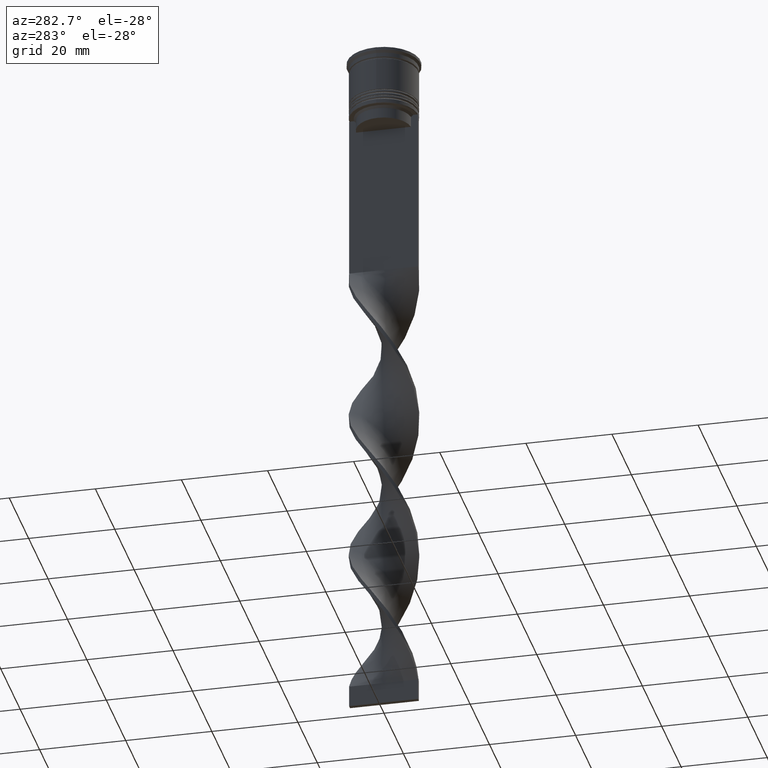
[diagram: clean part render]
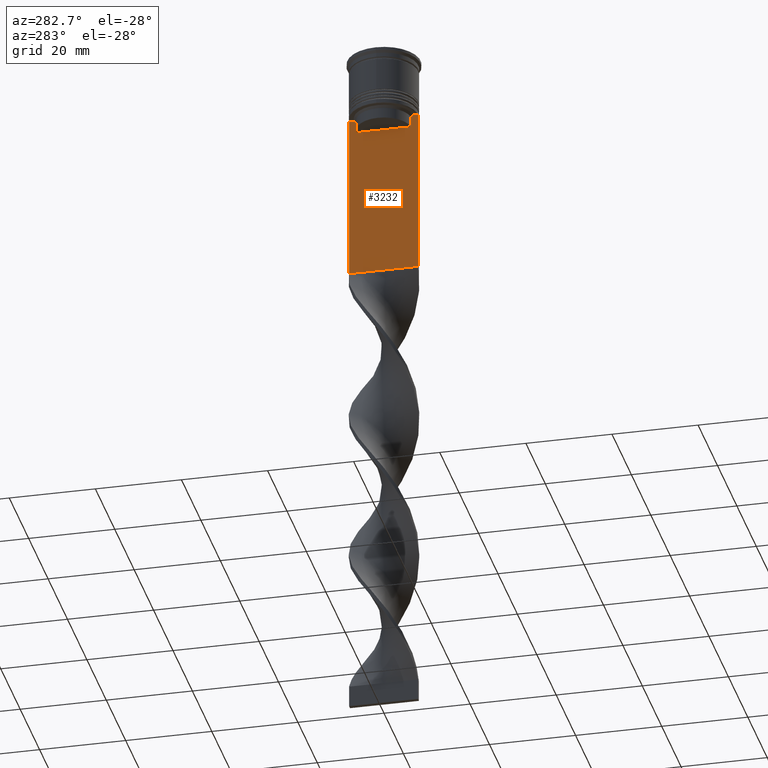
[diagram: same view with one face highlighted and labeled with its STEP entity id]
A machine part, auxiliary view. The second image highlights one B-rep face of the part: STEP entity #3232.
In plain terms, the highlighted planar face has unit normal (-1, 0, 0).
Its self-contained STEP definition (entity closure, byte-faithful):
#53 = CARTESIAN_POINT ( 'NONE',  ( -0.4999999999999998890, -7.884161337770806632, -14.00000000000000178 ) ) ;
#153 = ORIENTED_EDGE ( 'NONE', *, *, #1348, .F. ) ;
#163 = LINE ( 'NONE', #1061, #366 ) ;
#187 = EDGE_CURVE ( 'NONE', #2667, #1588, #1937, .T. ) ;
#202 = LINE ( 'NONE', #2531, #3271 ) ;
#227 = DIRECTION ( 'NONE',  ( -0.000000000000000000, -0.000000000000000000, 1.000000000000000000 ) ) ;
#233 = DIRECTION ( 'NONE',  ( 0.000000000000000000, -1.000000000000000000, 0.000000000000000000 ) ) ;
#255 = AXIS2_PLACEMENT_3D ( 'NONE', #2763, #1032, #456 ) ;
#324 = CARTESIAN_POINT ( 'NONE',  ( -0.4999999999999998890, 6.380438856379708312, -14.50000000000000000 ) ) ;
#366 = VECTOR ( 'NONE', #501, 1000.000000000000000 ) ;
#377 = DIRECTION ( 'NONE',  ( 0.000000000000000000, -1.000000000000000000, 0.000000000000000000 ) ) ;
#382 = EDGE_CURVE ( 'NONE', #3223, #796, #2414, .T. ) ;
#397 = CARTESIAN_POINT ( 'NONE',  ( -0.4999999999999998890, -8.000000000000003553, -14.00000000000000178 ) ) ;
#401 = ORIENTED_EDGE ( 'NONE', *, *, #1395, .F. ) ;
#403 = EDGE_CURVE ( 'NONE', #1856, #2705, #3672, .T. ) ;
#456 = DIRECTION ( 'NONE',  ( 0.000000000000000000, 0.000000000000000000, 1.000000000000000000 ) ) ;
#501 = DIRECTION ( 'NONE',  ( 0.000000000000000000, 0.000000000000000000, -1.000000000000000000 ) ) ;
#613 = VECTOR ( 'NONE', #2871, 1000.000000000000000 ) ;
#643 = ORIENTED_EDGE ( 'NONE', *, *, #403, .F. ) ;
#796 = VERTEX_POINT ( 'NONE', #2517 ) ;
#815 = CARTESIAN_POINT ( 'NONE',  ( -0.4999999999999998890, -8.000000000000003553, -14.00000000000000178 ) ) ;
#822 = ORIENTED_EDGE ( 'NONE', *, *, #2341, .T. ) ;
#880 = CARTESIAN_POINT ( 'NONE',  ( -0.4999999999999998890, 7.999999999999996447, -53.00000000000000000 ) ) ;
#914 = VECTOR ( 'NONE', #377, 1000.000000000000000 ) ;
#959 = ORIENTED_EDGE ( 'NONE', *, *, #3515, .F. ) ;
#1032 = DIRECTION ( 'NONE',  ( -1.000000000000000000, 0.000000000000000000, 0.000000000000000000 ) ) ;
#1061 = CARTESIAN_POINT ( 'NONE',  ( -0.4999999999999998890, 7.999999999999996447, 2.031219541881394530 ) ) ;
#1086 = DIRECTION ( 'NONE',  ( 0.000000000000000000, -1.000000000000000000, 0.000000000000000000 ) ) ;
#1160 = CARTESIAN_POINT ( 'NONE',  ( -0.4999999999999998890, 6.380438856379708312, 0.000000000000000000 ) ) ;
#1306 = CARTESIAN_POINT ( 'NONE',  ( -0.4999999999999998890, 6.380438856379708312, -17.00000000000000000 ) ) ;
#1348 = EDGE_CURVE ( 'NONE', #1588, #1856, #2523, .T. ) ;
#1361 = DIRECTION ( 'NONE',  ( 0.000000000000000000, -1.000000000000000000, 0.000000000000000000 ) ) ;
#1395 = EDGE_CURVE ( 'NONE', #2705, #3317, #1982, .T. ) ;
#1405 = LINE ( 'NONE', #2245, #1949 ) ;
#1423 = CARTESIAN_POINT ( 'NONE',  ( -0.4999999999999998890, 7.884161337770806632, -14.00000000000000178 ) ) ;
#1462 = DIRECTION ( 'NONE',  ( 0.000000000000000000, 0.000000000000000000, -1.000000000000000000 ) ) ;
#1530 = EDGE_CURVE ( 'NONE', #796, #3421, #1995, .T. ) ;
#1580 = ORIENTED_EDGE ( 'NONE', *, *, #382, .F. ) ;
#1588 = VERTEX_POINT ( 'NONE', #2070 ) ;
#1638 = VECTOR ( 'NONE', #227, 1000.000000000000000 ) ;
#1715 = CARTESIAN_POINT ( 'NONE',  ( -0.4999999999999998890, -8.000000000000003553, 2.031219541881394530 ) ) ;
#1762 = CARTESIAN_POINT ( 'NONE',  ( -0.4999999999999998890, 6.547597841304911626, -14.33335192459222718 ) ) ;
#1856 = VERTEX_POINT ( 'NONE', #1306 ) ;
#1864 = DIRECTION ( 'NONE',  ( 0.000000000000000000, 1.000000000000000000, 0.000000000000000000 ) ) ;
#1878 = VECTOR ( 'NONE', #1086, 1000.000000000000000 ) ;
#1906 = ORIENTED_EDGE ( 'NONE', *, *, #1530, .F. ) ;
#1935 = CARTESIAN_POINT ( 'NONE',  ( -0.4999999999999998890, 7.999999999999996447, -14.00000000000000178 ) ) ;
#1937 = B_SPLINE_CURVE_WITH_KNOTS ( 'NONE', 3,
 ( #2039, #2586, #1762, #324 ),
 .UNSPECIFIED., .F., .F.,
 ( 4, 4 ),
 ( 0.01172465562756038263, 0.01243276816391822651 ),
 .UNSPECIFIED. ) ;
#1949 = VECTOR ( 'NONE', #2601, 1000.000000000000000 ) ;
#1982 = LINE ( 'NONE', #3159, #1638 ) ;
#1995 = LINE ( 'NONE', #1715, #613 ) ;
#2039 = CARTESIAN_POINT ( 'NONE',  ( -0.4999999999999998890, 6.881860213634098500, -14.00000000000000178 ) ) ;
#2070 = CARTESIAN_POINT ( 'NONE',  ( -0.4999999999999998890, 6.380438856379708312, -14.50000000000000000 ) ) ;
#2195 = CARTESIAN_POINT ( 'NONE',  ( -0.4999999999999998890, -6.380438856379708312, -17.00000000000000000 ) ) ;
#2236 = VECTOR ( 'NONE', #233, 1000.000000000000000 ) ;
#2245 = CARTESIAN_POINT ( 'NONE',  ( -0.4999999999999998890, -8.000000000000003553, -14.00000000000000178 ) ) ;
#2273 = EDGE_CURVE ( 'NONE', #3421, #3537, #3241, .T. ) ;
#2299 = VECTOR ( 'NONE', #1864, 1000.000000000000000 ) ;
#2341 = EDGE_CURVE ( 'NONE', #2380, #3537, #163, .T. ) ;
#2380 = VERTEX_POINT ( 'NONE', #1935 ) ;
#2397 = EDGE_CURVE ( 'NONE', #2380, #3444, #202, .T. ) ;
#2414 = LINE ( 'NONE', #397, #914 ) ;
#2457 = ORIENTED_EDGE ( 'NONE', *, *, #187, .F. ) ;
#2485 = ORIENTED_EDGE ( 'NONE', *, *, #2273, .F. ) ;
#2492 = CARTESIAN_POINT ( 'NONE',  ( -0.4999999999999998890, -6.380438856379708312, -14.50000000000000000 ) ) ;
#2497 = EDGE_CURVE ( 'NONE', #3444, #2667, #3399, .T. ) ;
#2517 = CARTESIAN_POINT ( 'NONE',  ( -0.4999999999999998890, -8.000000000000003553, -14.00000000000000178 ) ) ;
#2521 = CARTESIAN_POINT ( 'NONE',  ( -0.4999999999999998890, -6.547597841511246131, -14.33335192438652328 ) ) ;
#2523 = LINE ( 'NONE', #1160, #3458 ) ;
#2531 = CARTESIAN_POINT ( 'NONE',  ( -0.4999999999999998890, -8.000000000000003553, -14.00000000000000178 ) ) ;
#2580 = CARTESIAN_POINT ( 'NONE',  ( -0.4999999999999998890, -6.881860213634098500, -14.00000000000000178 ) ) ;
#2586 = CARTESIAN_POINT ( 'NONE',  ( -0.4999999999999998890, 6.714736947114692711, -14.16668390704818847 ) ) ;
#2599 = ORIENTED_EDGE ( 'NONE', *, *, #3561, .F. ) ;
#2601 = DIRECTION ( 'NONE',  ( 0.000000000000000000, -1.000000000000000000, 0.000000000000000000 ) ) ;
#2667 = VERTEX_POINT ( 'NONE', #3258 ) ;
#2705 = VERTEX_POINT ( 'NONE', #2195 ) ;
#2763 = CARTESIAN_POINT ( 'NONE',  ( -0.4999999999999998890, -8.000000000000003553, 2.031219541881394530 ) ) ;
#2824 = B_SPLINE_CURVE_WITH_KNOTS ( 'NONE', 3,
 ( #3467, #2521, #2855, #2580 ),
 .UNSPECIFIED., .F., .F.,
 ( 4, 4 ),
 ( 0.02996184199614749730, 0.03067452609193703841 ),
 .UNSPECIFIED. ) ;
#2833 = CARTESIAN_POINT ( 'NONE',  ( -0.4999999999999998890, -6.881860213634098500, -14.00000000000000178 ) ) ;
#2855 = CARTESIAN_POINT ( 'NONE',  ( -0.4999999999999998890, -6.714736947305992132, -14.16668390685738999 ) ) ;
#2871 = DIRECTION ( 'NONE',  ( 0.000000000000000000, 0.000000000000000000, -1.000000000000000000 ) ) ;
#2958 = ORIENTED_EDGE ( 'NONE', *, *, #2397, .F. ) ;
#3052 = PLANE ( 'NONE',  #255 ) ;
#3159 = CARTESIAN_POINT ( 'NONE',  ( -0.4999999999999998890, -6.380438856379708312, 0.000000000000000000 ) ) ;
#3223 = VERTEX_POINT ( 'NONE', #53 ) ;
#3232 = ADVANCED_FACE ( 'NONE', ( #3527 ), #3052, .T. ) ;
#3234 = ORIENTED_EDGE ( 'NONE', *, *, #2497, .F. ) ;
#3241 = LINE ( 'NONE', #3610, #2299 ) ;
#3258 = CARTESIAN_POINT ( 'NONE',  ( -0.4999999999999998890, 6.881860213634098500, -14.00000000000000178 ) ) ;
#3271 = VECTOR ( 'NONE', #1361, 1000.000000000000000 ) ;
#3284 = EDGE_LOOP ( 'NONE', ( #2457, #3234, #2958, #822, #2485, #1906, #1580, #2599, #959, #401, #643, #153 ) ) ;
#3311 = CARTESIAN_POINT ( 'NONE',  ( -0.4999999999999998890, -8.000000000000003553, -53.00000000000000000 ) ) ;
#3317 = VERTEX_POINT ( 'NONE', #2492 ) ;
#3399 = LINE ( 'NONE', #815, #2236 ) ;
#3421 = VERTEX_POINT ( 'NONE', #3311 ) ;
#3444 = VERTEX_POINT ( 'NONE', #1423 ) ;
#3458 = VECTOR ( 'NONE', #1462, 1000.000000000000000 ) ;
#3467 = CARTESIAN_POINT ( 'NONE',  ( -0.4999999999999998890, -6.380438856379708312, -14.50000000000000000 ) ) ;
#3515 = EDGE_CURVE ( 'NONE', #3317, #3582, #2824, .T. ) ;
#3527 = FACE_OUTER_BOUND ( 'NONE', #3284, .T. ) ;
#3537 = VERTEX_POINT ( 'NONE', #880 ) ;
#3561 = EDGE_CURVE ( 'NONE', #3582, #3223, #1405, .T. ) ;
#3582 = VERTEX_POINT ( 'NONE', #2833 ) ;
#3610 = CARTESIAN_POINT ( 'NONE',  ( -0.4999999999999998890, -8.000000000000003553, -53.00000000000000000 ) ) ;
#3657 = CARTESIAN_POINT ( 'NONE',  ( -0.4999999999999998890, 6.399999999999999467, -17.00000000000000000 ) ) ;
#3672 = LINE ( 'NONE', #3657, #1878 ) ;